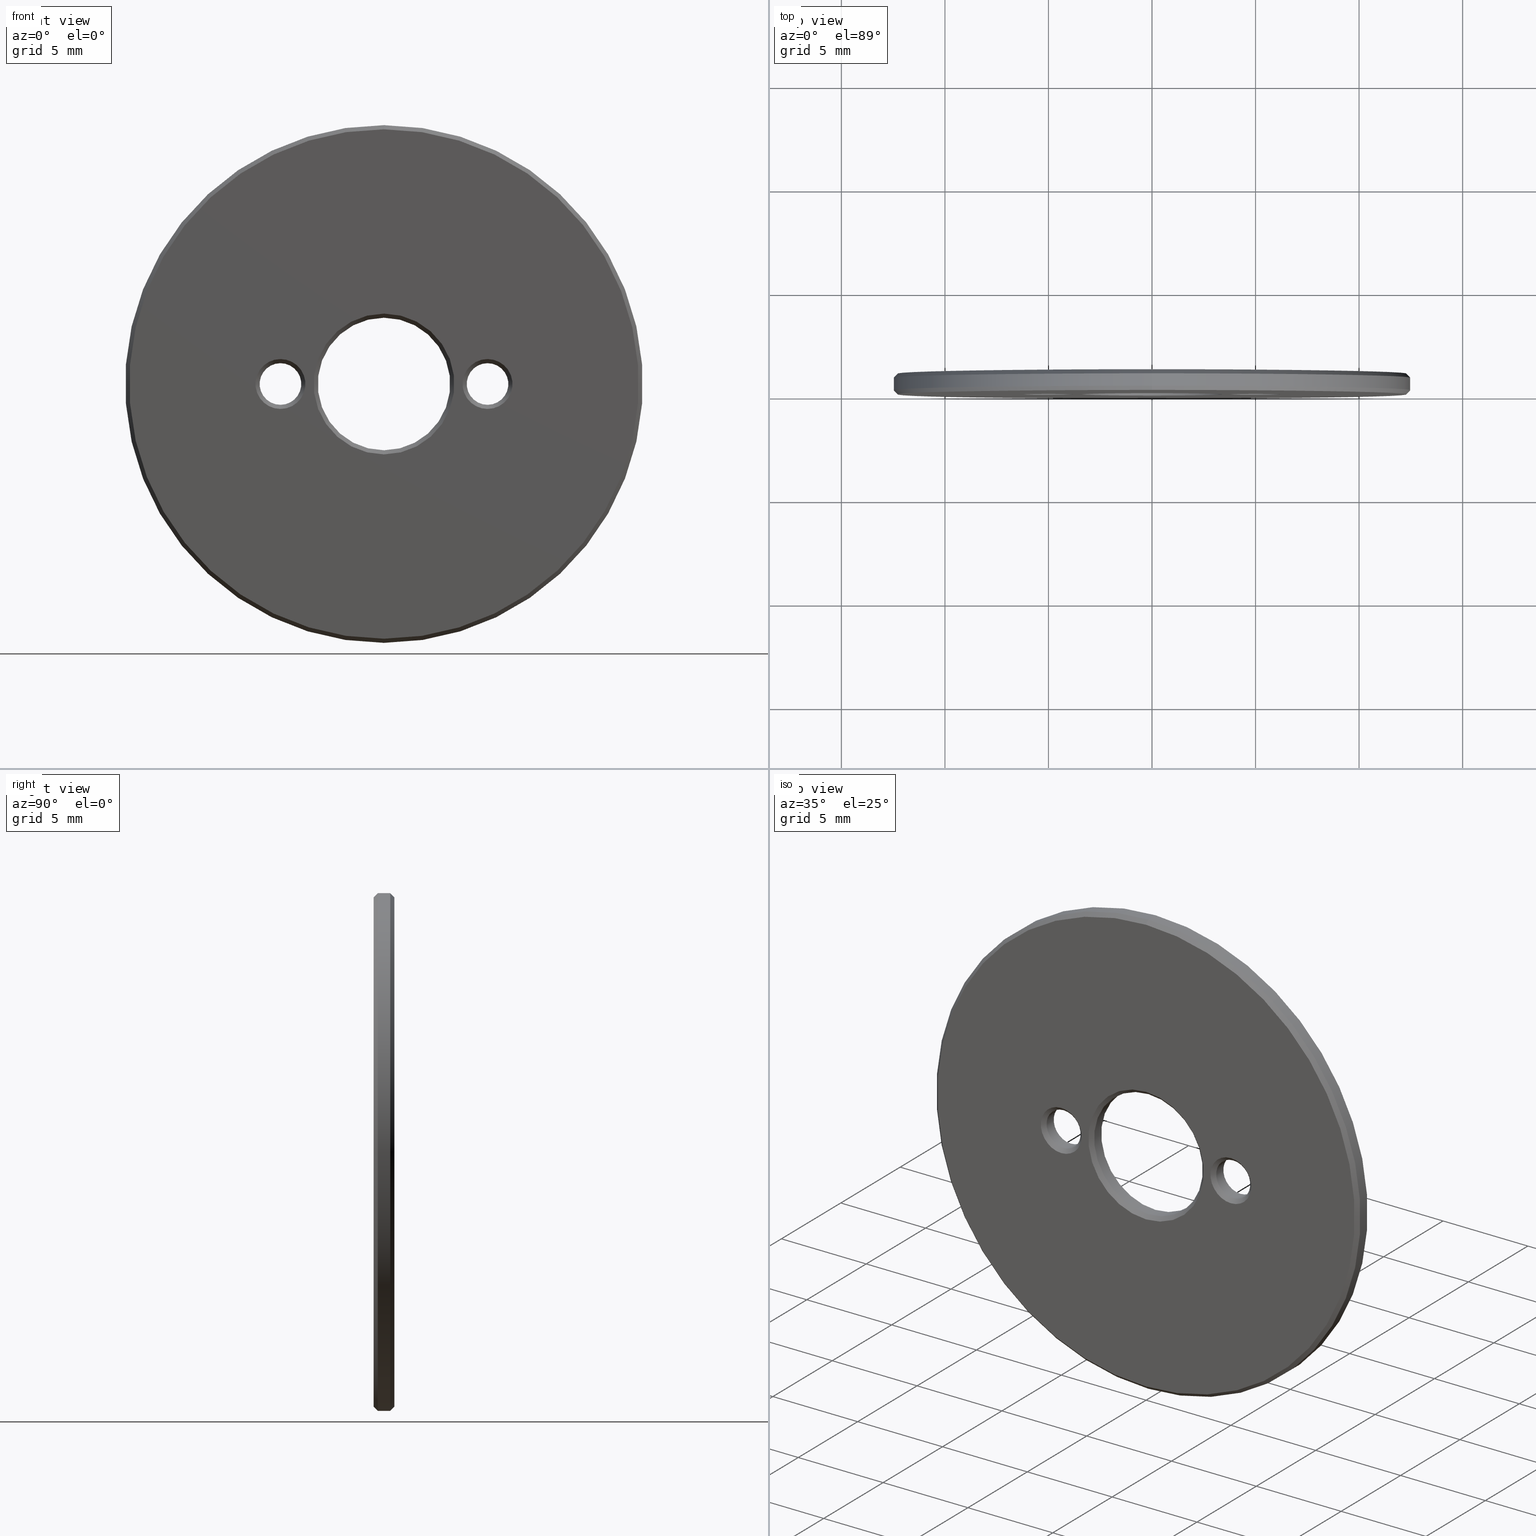
[diagram: canonical four-view strip — front | top / right | iso, engineering-drawing reading convention]
A machine part, canonical four-view strip (front | top / right | iso — engineering-drawing reading convention). The complete STEP part file that produces these views, byte-faithful:
ISO-10303-21;
HEADER;
FILE_DESCRIPTION (( 'STEP AP203' ),
    '1' );
FILE_NAME ('523800.STEP',
    '2022-12-15T01:49:51',
    ( '' ),
    ( '' ),
    'SwSTEP 2.0',
    'SolidWorks 2020',
    '' );
FILE_SCHEMA (( 'CONFIG_CONTROL_DESIGN' ));
ENDSEC;

DATA;
#1 = APPROVAL_STATUS ( 'not_yet_approved' ) ;
#2 = ADVANCED_BREP_SHAPE_REPRESENTATION ( '523800', ( #295, #219 ), #73 ) ;
#3 = EDGE_CURVE ( 'NONE', #172, #172, #47, .T. ) ;
#4 = APPROVAL_DATE_TIME ( #103, #354 ) ;
#5 = APPROVAL_PERSON_ORGANIZATION ( #196, #354, #164 ) ;
#6 = CONICAL_SURFACE ( 'NONE', #266, 3.200000000000000178, 0.7853981633974482790 ) ;
#7 = COORDINATED_UNIVERSAL_TIME_OFFSET ( 8, 0, .AHEAD. ) ;
#8 = DIRECTION ( 'NONE',  ( 0.000000000000000000, -0.000000000000000000, 1.000000000000000000 ) ) ;
#9 = APPROVAL_ROLE ( '' ) ;
#10 = DIRECTION ( 'NONE',  ( 0.000000000000000000, 0.000000000000000000, -1.000000000000000000 ) ) ;
#11 = DIRECTION ( 'NONE',  ( -0.000000000000000000, -1.000000000000000000, -0.000000000000000000 ) ) ;
#12 = APPROVAL_PERSON_ORGANIZATION ( #223, #313, #35 ) ;
#13 = CARTESIAN_POINT ( 'NONE',  ( -5.000000000000000000, 1.000000000000000000, 0.000000000000000000 ) ) ;
#14 = ADVANCED_FACE ( 'NONE', ( #297, #77 ), #250, .F. ) ;
#15 = VERTEX_POINT ( 'NONE', #382 ) ;
#16 = ORIENTED_EDGE ( 'NONE', *, *, #381, .F. ) ;
#17 = DIRECTION ( 'NONE',  ( 0.000000000000000000, 1.000000000000000000, 0.000000000000000000 ) ) ;
#18 = CC_DESIGN_APPROVAL ( #313, ( #226 ) ) ;
#19 = EDGE_LOOP ( 'NONE', ( #155 ) ) ;
#20 = DIRECTION ( 'NONE',  ( -0.000000000000000000, -1.000000000000000000, -0.000000000000000000 ) ) ;
#21 = ORIENTED_EDGE ( 'NONE', *, *, #81, .T. ) ;
#22 = CC_DESIGN_PERSON_AND_ORGANIZATION_ASSIGNMENT ( #314, #37, ( #226 ) ) ;
#23 = DIRECTION ( 'NONE',  ( -0.000000000000000000, -1.000000000000000000, -0.000000000000000000 ) ) ;
#24 = EDGE_LOOP ( 'NONE', ( #187 ) ) ;
#25 = VERTEX_POINT ( 'NONE', #118 ) ;
#26 = ORIENTED_EDGE ( 'NONE', *, *, #273, .F. ) ;
#27 = APPROVAL_PERSON_ORGANIZATION ( #133, #150, #9 ) ;
#28 = CARTESIAN_POINT ( 'NONE',  ( 0.000000000000000000, 0.8000000000000029310, 12.50000000000000000 ) ) ;
#29 = AXIS2_PLACEMENT_3D ( 'NONE', #167, #99, #285 ) ;
#30 = AXIS2_PLACEMENT_3D ( 'NONE', #261, #205, #176 ) ;
#31 = EDGE_LOOP ( 'NONE', ( #119 ) ) ;
#32 = AXIS2_PLACEMENT_3D ( 'NONE', #38, #199, #311 ) ;
#33 = VERTEX_POINT ( 'NONE', #220 ) ;
#34 = DIRECTION ( 'NONE',  ( 0.000000000000000000, 0.000000000000000000, -1.000000000000000000 ) ) ;
#35 = APPROVAL_ROLE ( '' ) ;
#36 = CYLINDRICAL_SURFACE ( 'NONE', #379, 12.50000000000000000 ) ;
#37 = PERSON_AND_ORGANIZATION_ROLE ( 'creator' ) ;
#38 = CARTESIAN_POINT ( 'NONE',  ( 0.000000000000000000, 0.1999999999999987899, 0.000000000000000000 ) ) ;
#39 = AXIS2_PLACEMENT_3D ( 'NONE', #378, #233, #238 ) ;
#40 = COORDINATED_UNIVERSAL_TIME_OFFSET ( 8, 0, .AHEAD. ) ;
#41 = ADVANCED_FACE ( 'NONE', ( #368, #321 ), #179, .F. ) ;
#42 = DESIGN_CONTEXT ( 'detailed design', #305, 'design' ) ;
#43 = SECURITY_CLASSIFICATION_LEVEL ( 'unclassified' ) ;
#44 = APPROVAL_STATUS ( 'not_yet_approved' ) ;
#45 = CC_DESIGN_APPROVAL ( #150, ( #299 ) ) ;
#46 = UNCERTAINTY_MEASURE_WITH_UNIT (LENGTH_MEASURE( 1.000000000000000082E-05 ), #367, 'distance_accuracy_value', 'NONE');
#47 = CIRCLE ( 'NONE', #171, 3.200000000000000178 ) ;
#48 = FACE_OUTER_BOUND ( 'NONE', #62, .T. ) ;
#49 = CARTESIAN_POINT ( 'NONE',  ( 0.000000000000000000, 1.000000000000000000, 0.000000000000000000 ) ) ;
#50 = DIRECTION ( 'NONE',  ( 0.000000000000000000, 0.000000000000000000, 1.000000000000000000 ) ) ;
#51 = DIRECTION ( 'NONE',  ( 0.000000000000000000, 0.000000000000000000, -1.000000000000000000 ) ) ;
#52 = CONICAL_SURFACE ( 'NONE', #190, 1.004999999999999893, 0.7853981633974488341 ) ;
#53 = DIRECTION ( 'NONE',  ( -0.000000000000000000, -1.000000000000000000, -0.000000000000000000 ) ) ;
#54 = ORIENTED_EDGE ( 'NONE', *, *, #163, .F. ) ;
#55 = FACE_BOUND ( 'NONE', #148, .T. ) ;
#56 = LOCAL_TIME ( 9, 49, 51.00000000000000000, #288 ) ;
#57 = ORIENTED_EDGE ( 'NONE', *, *, #3, .F. ) ;
#58 = ADVANCED_FACE ( 'NONE', ( #169, #256 ), #6, .F. ) ;
#59 = CARTESIAN_POINT ( 'NONE',  ( 0.000000000000000000, 0.2000000000000070333, 3.200000000000000178 ) ) ;
#60 = AXIS2_PLACEMENT_3D ( 'NONE', #139, #296, #356 ) ;
#61 = ORIENTED_EDGE ( 'NONE', *, *, #201, .F. ) ;
#62 = EDGE_LOOP ( 'NONE', ( #92 ) ) ;
#63 = PERSON_AND_ORGANIZATION_ROLE ( 'design_owner' ) ;
#64 = ADVANCED_FACE ( 'NONE', ( #397, #202 ), #369, .T. ) ;
#65 = ORIENTED_EDGE ( 'NONE', *, *, #255, .F. ) ;
#66 = AXIS2_PLACEMENT_3D ( 'NONE', #170, #211, #260 ) ;
#67 = DIRECTION ( 'NONE',  ( -0.000000000000000000, -1.000000000000000000, -0.000000000000000000 ) ) ;
#68 = CONICAL_SURFACE ( 'NONE', #32, 12.50000000000000000, 0.7853981633974482790 ) ;
#69 = CARTESIAN_POINT ( 'NONE',  ( -5.000000000000000000, 1.000000000000000000, 1.205000000000004734 ) ) ;
#70 = DIRECTION ( 'NONE',  ( 0.000000000000000000, 1.000000000000000000, 0.000000000000000000 ) ) ;
#71 = VERTEX_POINT ( 'NONE', #389 ) ;
#72 = DIRECTION ( 'NONE',  ( 0.000000000000000000, 0.000000000000000000, -1.000000000000000000 ) ) ;
#73 =( GEOMETRIC_REPRESENTATION_CONTEXT ( 3 ) GLOBAL_UNCERTAINTY_ASSIGNED_CONTEXT ( ( #46 ) ) GLOBAL_UNIT_ASSIGNED_CONTEXT ( ( #367, #249, #192 ) ) REPRESENTATION_CONTEXT ( 'NONE', 'WORKASPACE' ) );
#74 = AXIS2_PLACEMENT_3D ( 'NONE', #330, #20, #114 ) ;
#75 = CALENDAR_DATE ( 2022, 15, 12 ) ;
#76 = ADVANCED_FACE ( 'NONE', ( #290, #135 ), #129, .F. ) ;
#77 = FACE_OUTER_BOUND ( 'NONE', #214, .T. ) ;
#78 = AXIS2_PLACEMENT_3D ( 'NONE', #49, #222, #258 ) ;
#79 = FACE_BOUND ( 'NONE', #362, .T. ) ;
#80 = CYLINDRICAL_SURFACE ( 'NONE', #309, 3.200000000000000178 ) ;
#81 = EDGE_CURVE ( 'NONE', #15, #15, #302, .T. ) ;
#82 = DIRECTION ( 'NONE',  ( 0.000000000000000000, 0.000000000000000000, 1.000000000000000000 ) ) ;
#83 = AXIS2_PLACEMENT_3D ( 'NONE', #88, #17, #209 ) ;
#84 = DIRECTION ( 'NONE',  ( 0.000000000000000000, 1.000000000000000000, 0.000000000000000000 ) ) ;
#85 = CARTESIAN_POINT ( 'NONE',  ( 0.000000000000000000, 1.000000000000000000, 0.000000000000000000 ) ) ;
#86 = ADVANCED_FACE ( 'NONE', ( #279, #224 ), #36, .T. ) ;
#87 = EDGE_LOOP ( 'NONE', ( #306 ) ) ;
#88 = CARTESIAN_POINT ( 'NONE',  ( 5.000000000000000000, 0.8000000000000058176, -1.836970198721029194E-15 ) ) ;
#89 = ORIENTED_EDGE ( 'NONE', *, *, #328, .T. ) ;
#90 = PRODUCT_DEFINITION_SHAPE ( 'NONE', 'NONE',  #226 ) ;
#91 = MECHANICAL_CONTEXT ( 'NONE', #259, 'mechanical' ) ;
#92 = ORIENTED_EDGE ( 'NONE', *, *, #204, .T. ) ;
#93 = ADVANCED_FACE ( 'NONE', ( #79, #345, #48, #102 ), #229, .T. ) ;
#94 = EDGE_LOOP ( 'NONE', ( #329 ) ) ;
#95 = APPLICATION_PROTOCOL_DEFINITION ( 'international standard', 'config_control_design', 1994, #305 ) ;
#96 = CARTESIAN_POINT ( 'NONE',  ( 5.000000000000000000, 0.8000000000000058176, -1.836970198721029194E-15 ) ) ;
#97 = VERTEX_POINT ( 'NONE', #307 ) ;
#98 = CIRCLE ( 'NONE', #227, 12.29999999999999893 ) ;
#99 = DIRECTION ( 'NONE',  ( -0.000000000000000000, -1.000000000000000000, -0.000000000000000000 ) ) ;
#100 = VERTEX_POINT ( 'NONE', #241 ) ;
#101 = ADVANCED_FACE ( 'NONE', ( #291, #193 ), #52, .F. ) ;
#102 = FACE_BOUND ( 'NONE', #181, .T. ) ;
#103 = DATE_AND_TIME ( #316, #377 ) ;
#104 = CC_DESIGN_APPROVAL ( #354, ( #281 ) ) ;
#105 = CIRCLE ( 'NONE', #74, 1.004999999999999893 ) ;
#106 = CARTESIAN_POINT ( 'NONE',  ( -5.000000000000000000, 0.000000000000000000, 0.000000000000000000 ) ) ;
#107 = CARTESIAN_POINT ( 'NONE',  ( 0.000000000000000000, 1.000000000000000000, 0.000000000000000000 ) ) ;
#108 = CIRCLE ( 'NONE', #341, 12.30000000000000249 ) ;
#109 = PLANE ( 'NONE',  #66 ) ;
#110 = FACE_OUTER_BOUND ( 'NONE', #87, .T. ) ;
#111 = CARTESIAN_POINT ( 'NONE',  ( 5.000000000000000000, 0.2000000000000016209, -1.836970198721029194E-15 ) ) ;
#112 = ORIENTED_EDGE ( 'NONE', *, *, #182, .T. ) ;
#113 = CONICAL_SURFACE ( 'NONE', #60, 1.004999999999999893, 0.7853981633974488341 ) ;
#114 = DIRECTION ( 'NONE',  ( 0.000000000000000000, 0.000000000000000000, 1.000000000000000000 ) ) ;
#115 = ORIENTED_EDGE ( 'NONE', *, *, #381, .T. ) ;
#116 = FACE_OUTER_BOUND ( 'NONE', #122, .T. ) ;
#117 = EDGE_LOOP ( 'NONE', ( #112 ) ) ;
#118 = CARTESIAN_POINT ( 'NONE',  ( 0.000000000000000000, 0.000000000000000000, 12.30000000000000249 ) ) ;
#119 = ORIENTED_EDGE ( 'NONE', *, *, #255, .T. ) ;
#120 = APPLICATION_PROTOCOL_DEFINITION ( 'international standard', 'config_control_design', 1994, #259 ) ;
#121 = CLOSED_SHELL ( 'NONE', ( #93, #252, #86, #318, #128, #298, #41, #76, #14, #142, #344, #58, #64, #101 ) ) ;
#122 = EDGE_LOOP ( 'NONE', ( #392 ) ) ;
#123 = VERTEX_POINT ( 'NONE', #28 ) ;
#124 = VERTEX_POINT ( 'NONE', #185 ) ;
#125 = DIRECTION ( 'NONE',  ( 0.000000000000000000, 0.000000000000000000, 1.000000000000000000 ) ) ;
#126 = LOCAL_TIME ( 9, 49, 51.00000000000000000, #7 ) ;
#127 = VERTEX_POINT ( 'NONE', #337 ) ;
#128 = ADVANCED_FACE ( 'NONE', ( #312, #159 ), #340, .F. ) ;
#129 = CONICAL_SURFACE ( 'NONE', #353, 1.205000000000001181, 0.7853981633974477239 ) ;
#130 = FACE_OUTER_BOUND ( 'NONE', #331, .T. ) ;
#131 = PERSON_AND_ORGANIZATION_ROLE ( 'classification_officer' ) ;
#132 = EDGE_CURVE ( 'NONE', #183, #183, #276, .T. ) ;
#133 = PERSON_AND_ORGANIZATION ( #243, #264 ) ;
#134 = AXIS2_PLACEMENT_3D ( 'NONE', #111, #53, #303 ) ;
#135 = FACE_OUTER_BOUND ( 'NONE', #270, .T. ) ;
#136 = PERSON_AND_ORGANIZATION_ROLE ( 'creator' ) ;
#137 = CARTESIAN_POINT ( 'NONE',  ( 0.000000000000000000, 1.000000000000000000, 0.000000000000000000 ) ) ;
#138 = CARTESIAN_POINT ( 'NONE',  ( 5.000000000000000000, 1.000000000000000000, -1.836970198721029194E-15 ) ) ;
#139 = CARTESIAN_POINT ( 'NONE',  ( -5.000000000000000000, 0.7999999999999953815, 0.000000000000000000 ) ) ;
#140 = FACE_OUTER_BOUND ( 'NONE', #24, .T. ) ;
#141 = EDGE_LOOP ( 'NONE', ( #65 ) ) ;
#142 = ADVANCED_FACE ( 'NONE', ( #282, #130 ), #68, .T. ) ;
#143 = CARTESIAN_POINT ( 'NONE',  ( 0.000000000000000000, 0.8000000000000029310, 0.000000000000000000 ) ) ;
#144 = EDGE_LOOP ( 'NONE', ( #363 ) ) ;
#145 = DIRECTION ( 'NONE',  ( -0.000000000000000000, -1.000000000000000000, -0.000000000000000000 ) ) ;
#146 = EDGE_LOOP ( 'NONE', ( #244 ) ) ;
#147 = DIRECTION ( 'NONE',  ( -0.000000000000000000, -1.000000000000000000, -0.000000000000000000 ) ) ;
#148 = EDGE_LOOP ( 'NONE', ( #178 ) ) ;
#149 = PERSON_AND_ORGANIZATION ( #243, #264 ) ;
#150 = APPROVAL ( #1, 'δָ��' ) ;
#151 = EDGE_LOOP ( 'NONE', ( #320 ) ) ;
#152 = CARTESIAN_POINT ( 'NONE',  ( 5.000000000000000000, 0.8000000000000058176, 1.004999999999998117 ) ) ;
#153 = CIRCLE ( 'NONE', #134, 1.004999999999999893 ) ;
#154 = CIRCLE ( 'NONE', #235, 1.205000000000001181 ) ;
#155 = ORIENTED_EDGE ( 'NONE', *, *, #348, .F. ) ;
#156 = VERTEX_POINT ( 'NONE', #310 ) ;
#157 = CARTESIAN_POINT ( 'NONE',  ( 5.000000000000000000, 0.000000000000000000, -1.836970198721029194E-15 ) ) ;
#158 = DATE_AND_TIME ( #247, #186 ) ;
#159 = FACE_OUTER_BOUND ( 'NONE', #117, .T. ) ;
#160 = AXIS2_PLACEMENT_3D ( 'NONE', #294, #145, #263 ) ;
#161 = DIRECTION ( 'NONE',  ( 0.000000000000000000, 1.000000000000000000, 0.000000000000000000 ) ) ;
#162 = PERSON_AND_ORGANIZATION_ROLE ( 'design_supplier' ) ;
#163 = EDGE_CURVE ( 'NONE', #33, #33, #154, .T. ) ;
#164 = APPROVAL_ROLE ( '' ) ;
#165 = CIRCLE ( 'NONE', #83, 1.004999999999999893 ) ;
#166 = CALENDAR_DATE ( 2022, 15, 12 ) ;
#167 = CARTESIAN_POINT ( 'NONE',  ( -5.000000000000000000, 0.000000000000000000, 0.000000000000000000 ) ) ;
#168 = EDGE_CURVE ( 'NONE', #127, #127, #289, .T. ) ;
#169 = FACE_OUTER_BOUND ( 'NONE', #141, .T. ) ;
#170 = CARTESIAN_POINT ( 'NONE',  ( 0.000000000000000000, 0.000000000000000000, 0.000000000000000000 ) ) ;
#171 = AXIS2_PLACEMENT_3D ( 'NONE', #184, #246, #366 ) ;
#172 = VERTEX_POINT ( 'NONE', #59 ) ;
#173 = PRODUCT_RELATED_PRODUCT_CATEGORY ( 'detail', '', ( #272 ) ) ;
#174 = CARTESIAN_POINT ( 'NONE',  ( 0.000000000000000000, 1.000000000000000000, 0.000000000000000000 ) ) ;
#175 = EDGE_LOOP ( 'NONE', ( #26 ) ) ;
#176 = DIRECTION ( 'NONE',  ( 0.000000000000000000, 0.000000000000000000, 1.000000000000000000 ) ) ;
#177 = LOCAL_TIME ( 9, 49, 51.00000000000000000, #319 ) ;
#178 = ORIENTED_EDGE ( 'NONE', *, *, #168, .T. ) ;
#179 = CONICAL_SURFACE ( 'NONE', #29, 1.205000000000001181, 0.7853981633974477239 ) ;
#180 = CYLINDRICAL_SURFACE ( 'NONE', #326, 1.004999999999999893 ) ;
#181 = EDGE_LOOP ( 'NONE', ( #21 ) ) ;
#182 = EDGE_CURVE ( 'NONE', #346, #346, #165, .T. ) ;
#183 = VERTEX_POINT ( 'NONE', #343 ) ;
#184 = CARTESIAN_POINT ( 'NONE',  ( 0.000000000000000000, 0.2000000000000070333, 0.000000000000000000 ) ) ;
#185 = CARTESIAN_POINT ( 'NONE',  ( -5.000000000000000000, 0.2000000000000016209, 1.004999999999999893 ) ) ;
#186 = LOCAL_TIME ( 9, 49, 51.00000000000000000, #339 ) ;
#187 = ORIENTED_EDGE ( 'NONE', *, *, #273, .T. ) ;
#188 = CIRCLE ( 'NONE', #200, 3.200000000000000178 ) ;
#189 = VERTEX_POINT ( 'NONE', #269 ) ;
#190 = AXIS2_PLACEMENT_3D ( 'NONE', #96, #218, #195 ) ;
#191 = DIRECTION ( 'NONE',  ( 0.000000000000000000, 1.000000000000000000, 0.000000000000000000 ) ) ;
#192 =( NAMED_UNIT ( * ) SI_UNIT ( $, .STERADIAN. ) SOLID_ANGLE_UNIT ( ) );
#193 = FACE_BOUND ( 'NONE', #210, .T. ) ;
#194 = APPROVAL_DATE_TIME ( #158, #313 ) ;
#195 = DIRECTION ( 'NONE',  ( 0.000000000000000000, 0.000000000000000000, 1.000000000000000000 ) ) ;
#196 = PERSON_AND_ORGANIZATION ( #243, #264 ) ;
#197 = CIRCLE ( 'NONE', #350, 12.50000000000000000 ) ;
#198 = APPROVAL_DATE_TIME ( #287, #150 ) ;
#199 = DIRECTION ( 'NONE',  ( -0.000000000000000000, 1.000000000000000000, -0.000000000000000000 ) ) ;
#200 = AXIS2_PLACEMENT_3D ( 'NONE', #325, #380, #207 ) ;
#201 = EDGE_CURVE ( 'NONE', #124, #124, #105, .T. ) ;
#202 = FACE_BOUND ( 'NONE', #151, .T. ) ;
#203 = CARTESIAN_POINT ( 'NONE',  ( 0.000000000000000000, 0.000000000000000000, 0.000000000000000000 ) ) ;
#204 = EDGE_CURVE ( 'NONE', #97, #97, #98, .T. ) ;
#205 = DIRECTION ( 'NONE',  ( -0.000000000000000000, 1.000000000000000000, -0.000000000000000000 ) ) ;
#206 = AXIS2_PLACEMENT_3D ( 'NONE', #106, #396, #315 ) ;
#207 = DIRECTION ( 'NONE',  ( 0.000000000000000000, 0.000000000000000000, 1.000000000000000000 ) ) ;
#208 = EDGE_LOOP ( 'NONE', ( #61 ) ) ;
#209 = DIRECTION ( 'NONE',  ( 0.000000000000000000, 0.000000000000000000, 1.000000000000000000 ) ) ;
#210 = EDGE_LOOP ( 'NONE', ( #240 ) ) ;
#211 = DIRECTION ( 'NONE',  ( 0.000000000000000000, 1.000000000000000000, 0.000000000000000000 ) ) ;
#212 = EDGE_LOOP ( 'NONE', ( #57 ) ) ;
#213 = CIRCLE ( 'NONE', #39, 1.004999999999999893 ) ;
#214 = EDGE_LOOP ( 'NONE', ( #265 ) ) ;
#215 = EDGE_LOOP ( 'NONE', ( #308 ) ) ;
#216 = APPROVAL_STATUS ( 'not_yet_approved' ) ;
#217 = CC_DESIGN_PERSON_AND_ORGANIZATION_ASSIGNMENT ( #254, #136, ( #299 ) ) ;
#218 = DIRECTION ( 'NONE',  ( 0.000000000000000000, 1.000000000000000000, 0.000000000000000000 ) ) ;
#219 = AXIS2_PLACEMENT_3D ( 'NONE', #395, #280, #271 ) ;
#220 = CARTESIAN_POINT ( 'NONE',  ( 5.000000000000000000, 0.000000000000000000, 1.204999999999999405 ) ) ;
#221 = AXIS2_PLACEMENT_3D ( 'NONE', #13, #147, #232 ) ;
#222 = DIRECTION ( 'NONE',  ( 0.000000000000000000, -1.000000000000000000, 0.000000000000000000 ) ) ;
#223 = PERSON_AND_ORGANIZATION ( #243, #264 ) ;
#224 = FACE_OUTER_BOUND ( 'NONE', #304, .T. ) ;
#225 = DATE_AND_TIME ( #166, #56 ) ;
#226 = PRODUCT_DEFINITION ( 'δ֪', '', #299, #42 ) ;
#227 = AXIS2_PLACEMENT_3D ( 'NONE', #174, #300, #50 ) ;
#228 = DATE_AND_TIME ( #75, #126 ) ;
#229 = PLANE ( 'NONE',  #284 ) ;
#230 = DIRECTION ( 'NONE',  ( 0.000000000000000000, 0.000000000000000000, 1.000000000000000000 ) ) ;
#231 = AXIS2_PLACEMENT_3D ( 'NONE', #138, #257, #230 ) ;
#232 = DIRECTION ( 'NONE',  ( 0.000000000000000000, 0.000000000000000000, 1.000000000000000000 ) ) ;
#233 = DIRECTION ( 'NONE',  ( 0.000000000000000000, 1.000000000000000000, 0.000000000000000000 ) ) ;
#234 = FACE_BOUND ( 'NONE', #144, .T. ) ;
#235 = AXIS2_PLACEMENT_3D ( 'NONE', #157, #161, #125 ) ;
#236 = FACE_BOUND ( 'NONE', #215, .T. ) ;
#237 = ORIENTED_EDGE ( 'NONE', *, *, #328, .F. ) ;
#238 = DIRECTION ( 'NONE',  ( 0.000000000000000000, 0.000000000000000000, 1.000000000000000000 ) ) ;
#239 = CC_DESIGN_PERSON_AND_ORGANIZATION_ASSIGNMENT ( #317, #162, ( #299 ) ) ;
#240 = ORIENTED_EDGE ( 'NONE', *, *, #182, .F. ) ;
#241 = CARTESIAN_POINT ( 'NONE',  ( 0.000000000000000000, 1.000000000000000000, 3.399999999999999911 ) ) ;
#242 = EDGE_LOOP ( 'NONE', ( #16 ) ) ;
#243 = PERSON ( 'δָ��', 'δָ��', 'δָ��', ('δָ��'), ('δָ��'), ('δָ��') ) ;
#244 = ORIENTED_EDGE ( 'NONE', *, *, #81, .F. ) ;
#245 = EDGE_CURVE ( 'NONE', #189, #189, #188, .T. ) ;
#246 = DIRECTION ( 'NONE',  ( -0.000000000000000000, -1.000000000000000000, -0.000000000000000000 ) ) ;
#247 = CALENDAR_DATE ( 2022, 15, 12 ) ;
#248 = CARTESIAN_POINT ( 'NONE',  ( 0.000000000000000000, 0.000000000000000000, 0.000000000000000000 ) ) ;
#249 =( NAMED_UNIT ( * ) PLANE_ANGLE_UNIT ( ) SI_UNIT ( $, .RADIAN. ) );
#250 = CONICAL_SURFACE ( 'NONE', #349, 3.400000000000007017, 0.7853981633974482790 ) ;
#251 = CARTESIAN_POINT ( 'NONE',  ( 5.000000000000000000, 1.000000000000000000, -1.836970198721029194E-15 ) ) ;
#252 = ADVANCED_FACE ( 'NONE', ( #234, #236, #55, #110 ), #109, .F. ) ;
#253 = DATE_TIME_ROLE ( 'classification_date' ) ;
#254 = PERSON_AND_ORGANIZATION ( #243, #264 ) ;
#255 = EDGE_CURVE ( 'NONE', #100, #100, #384, .T. ) ;
#256 = FACE_BOUND ( 'NONE', #262, .T. ) ;
#257 = DIRECTION ( 'NONE',  ( -0.000000000000000000, -1.000000000000000000, -0.000000000000000000 ) ) ;
#258 = DIRECTION ( 'NONE',  ( 0.000000000000000000, 0.000000000000000000, -1.000000000000000000 ) ) ;
#259 = APPLICATION_CONTEXT ( 'configuration controlled 3d designs of mechanical parts and assemblies' ) ;
#260 = DIRECTION ( 'NONE',  ( 0.000000000000000000, -0.000000000000000000, 1.000000000000000000 ) ) ;
#261 = CARTESIAN_POINT ( 'NONE',  ( 0.000000000000000000, 0.1999999999999987899, 0.000000000000000000 ) ) ;
#262 = EDGE_LOOP ( 'NONE', ( #274 ) ) ;
#263 = DIRECTION ( 'NONE',  ( 0.000000000000000000, 0.000000000000000000, 1.000000000000000000 ) ) ;
#264 = ORGANIZATION ( 'δָ��', 'δָ��', '' ) ;
#265 = ORIENTED_EDGE ( 'NONE', *, *, #168, .F. ) ;
#266 = AXIS2_PLACEMENT_3D ( 'NONE', #347, #191, #351 ) ;
#267 = FACE_BOUND ( 'NONE', #175, .T. ) ;
#268 = EDGE_LOOP ( 'NONE', ( #301 ) ) ;
#269 = CARTESIAN_POINT ( 'NONE',  ( 0.000000000000000000, 0.8000000000000003775, 3.200000000000000178 ) ) ;
#270 = EDGE_LOOP ( 'NONE', ( #54 ) ) ;
#271 = DIRECTION ( 'NONE',  ( 1.000000000000000000, 0.000000000000000000, 0.000000000000000000 ) ) ;
#272 = PRODUCT ( '523800', '523800', '', ( #91 ) ) ;
#273 = EDGE_CURVE ( 'NONE', #71, #71, #213, .T. ) ;
#274 = ORIENTED_EDGE ( 'NONE', *, *, #245, .F. ) ;
#275 = CIRCLE ( 'NONE', #30, 12.50000000000000000 ) ;
#276 = CIRCLE ( 'NONE', #206, 1.205000000000001181 ) ;
#277 = EDGE_LOOP ( 'NONE', ( #237 ) ) ;
#278 = VERTEX_POINT ( 'NONE', #69 ) ;
#279 = FACE_OUTER_BOUND ( 'NONE', #388, .T. ) ;
#280 = DIRECTION ( 'NONE',  ( 0.000000000000000000, 0.000000000000000000, 1.000000000000000000 ) ) ;
#281 = SECURITY_CLASSIFICATION ( '', '', #43 ) ;
#282 = FACE_BOUND ( 'NONE', #338, .T. ) ;
#283 = CALENDAR_DATE ( 2022, 15, 12 ) ;
#284 = AXIS2_PLACEMENT_3D ( 'NONE', #107, #70, #8 ) ;
#285 = DIRECTION ( 'NONE',  ( 0.000000000000000000, 0.000000000000000000, -1.000000000000000000 ) ) ;
#286 = PERSON_AND_ORGANIZATION ( #243, #264 ) ;
#287 = DATE_AND_TIME ( #283, #177 ) ;
#288 = COORDINATED_UNIVERSAL_TIME_OFFSET ( 8, 0, .AHEAD. ) ;
#289 = CIRCLE ( 'NONE', #342, 3.400000000000007017 ) ;
#290 = FACE_BOUND ( 'NONE', #277, .T. ) ;
#291 = FACE_OUTER_BOUND ( 'NONE', #146, .T. ) ;
#292 = DIRECTION ( 'NONE',  ( -0.000000000000000000, -1.000000000000000000, -0.000000000000000000 ) ) ;
#293 = CC_DESIGN_PERSON_AND_ORGANIZATION_ASSIGNMENT ( #286, #131, ( #281 ) ) ;
#294 = CARTESIAN_POINT ( 'NONE',  ( 0.000000000000000000, 1.000000000000000000, 0.000000000000000000 ) ) ;
#295 = MANIFOLD_SOLID_BREP ( '����1', #121 ) ;
#296 = DIRECTION ( 'NONE',  ( 0.000000000000000000, 1.000000000000000000, 0.000000000000000000 ) ) ;
#297 = FACE_BOUND ( 'NONE', #212, .T. ) ;
#298 = ADVANCED_FACE ( 'NONE', ( #116, #140 ), #180, .F. ) ;
#299 = PRODUCT_DEFINITION_FORMATION_WITH_SPECIFIED_SOURCE ( '�κ�', '', #272, .NOT_KNOWN. ) ;
#300 = DIRECTION ( 'NONE',  ( 0.000000000000000000, 1.000000000000000000, 0.000000000000000000 ) ) ;
#301 = ORIENTED_EDGE ( 'NONE', *, *, #132, .F. ) ;
#302 = CIRCLE ( 'NONE', #231, 1.204999999999994298 ) ;
#303 = DIRECTION ( 'NONE',  ( 0.000000000000000000, 0.000000000000000000, 1.000000000000000000 ) ) ;
#304 = EDGE_LOOP ( 'NONE', ( #390 ) ) ;
#305 = APPLICATION_CONTEXT ( 'configuration controlled 3d designs of mechanical parts and assemblies' ) ;
#306 = ORIENTED_EDGE ( 'NONE', *, *, #394, .T. ) ;
#307 = CARTESIAN_POINT ( 'NONE',  ( 0.000000000000000000, 1.000000000000000000, 12.29999999999999893 ) ) ;
#308 = ORIENTED_EDGE ( 'NONE', *, *, #163, .T. ) ;
#309 = AXIS2_PLACEMENT_3D ( 'NONE', #85, #23, #332 ) ;
#310 = CARTESIAN_POINT ( 'NONE',  ( 5.000000000000000000, 0.2000000000000016209, 1.004999999999998117 ) ) ;
#311 = DIRECTION ( 'NONE',  ( 0.000000000000000000, 0.000000000000000000, 1.000000000000000000 ) ) ;
#312 = FACE_OUTER_BOUND ( 'NONE', #386, .T. ) ;
#313 = APPROVAL ( #216, 'δָ��' ) ;
#314 = PERSON_AND_ORGANIZATION ( #243, #264 ) ;
#315 = DIRECTION ( 'NONE',  ( 0.000000000000000000, 0.000000000000000000, 1.000000000000000000 ) ) ;
#316 = CALENDAR_DATE ( 2022, 15, 12 ) ;
#317 = PERSON_AND_ORGANIZATION ( #243, #264 ) ;
#318 = ADVANCED_FACE ( 'NONE', ( #361, #327 ), #80, .F. ) ;
#319 = COORDINATED_UNIVERSAL_TIME_OFFSET ( 8, 0, .AHEAD. ) ;
#320 = ORIENTED_EDGE ( 'NONE', *, *, #204, .F. ) ;
#321 = FACE_OUTER_BOUND ( 'NONE', #268, .T. ) ;
#322 = DIRECTION ( 'NONE',  ( -0.000000000000000000, -1.000000000000000000, -0.000000000000000000 ) ) ;
#323 = CARTESIAN_POINT ( 'NONE',  ( -5.000000000000000000, 1.000000000000000000, 0.000000000000000000 ) ) ;
#324 = CC_DESIGN_SECURITY_CLASSIFICATION ( #281, ( #299 ) ) ;
#325 = CARTESIAN_POINT ( 'NONE',  ( 0.000000000000000000, 0.8000000000000003775, 0.000000000000000000 ) ) ;
#326 = AXIS2_PLACEMENT_3D ( 'NONE', #323, #292, #51 ) ;
#327 = FACE_OUTER_BOUND ( 'NONE', #335, .T. ) ;
#328 = EDGE_CURVE ( 'NONE', #156, #156, #153, .T. ) ;
#329 = ORIENTED_EDGE ( 'NONE', *, *, #3, .T. ) ;
#330 = CARTESIAN_POINT ( 'NONE',  ( -5.000000000000000000, 0.2000000000000016209, 0.000000000000000000 ) ) ;
#331 = EDGE_LOOP ( 'NONE', ( #365 ) ) ;
#332 = DIRECTION ( 'NONE',  ( 0.000000000000000000, 0.000000000000000000, -1.000000000000000000 ) ) ;
#333 = ORIENTED_EDGE ( 'NONE', *, *, #364, .T. ) ;
#334 = VERTEX_POINT ( 'NONE', #391 ) ;
#335 = EDGE_LOOP ( 'NONE', ( #393 ) ) ;
#336 = CC_DESIGN_DATE_AND_TIME_ASSIGNMENT ( #228, #253, ( #281 ) ) ;
#337 = CARTESIAN_POINT ( 'NONE',  ( 0.000000000000000000, 0.000000000000000000, 3.400000000000007017 ) ) ;
#338 = EDGE_LOOP ( 'NONE', ( #360 ) ) ;
#339 = COORDINATED_UNIVERSAL_TIME_OFFSET ( 8, 0, .AHEAD. ) ;
#340 = CYLINDRICAL_SURFACE ( 'NONE', #358, 1.004999999999999893 ) ;
#341 = AXIS2_PLACEMENT_3D ( 'NONE', #203, #383, #359 ) ;
#342 = AXIS2_PLACEMENT_3D ( 'NONE', #248, #84, #355 ) ;
#343 = CARTESIAN_POINT ( 'NONE',  ( -5.000000000000000000, 0.000000000000000000, 1.205000000000001181 ) ) ;
#344 = ADVANCED_FACE ( 'NONE', ( #357, #267 ), #113, .F. ) ;
#345 = FACE_BOUND ( 'NONE', #31, .T. ) ;
#346 = VERTEX_POINT ( 'NONE', #152 ) ;
#347 = CARTESIAN_POINT ( 'NONE',  ( 0.000000000000000000, 0.8000000000000003775, 0.000000000000000000 ) ) ;
#348 = EDGE_CURVE ( 'NONE', #123, #123, #197, .T. ) ;
#349 = AXIS2_PLACEMENT_3D ( 'NONE', #374, #322, #370 ) ;
#350 = AXIS2_PLACEMENT_3D ( 'NONE', #143, #387, #82 ) ;
#351 = DIRECTION ( 'NONE',  ( 0.000000000000000000, 0.000000000000000000, 1.000000000000000000 ) ) ;
#352 = DIRECTION ( 'NONE',  ( -0.000000000000000000, -1.000000000000000000, -0.000000000000000000 ) ) ;
#353 = AXIS2_PLACEMENT_3D ( 'NONE', #375, #11, #10 ) ;
#354 = APPROVAL ( #44, 'δָ��' ) ;
#355 = DIRECTION ( 'NONE',  ( 0.000000000000000000, 0.000000000000000000, 1.000000000000000000 ) ) ;
#356 = DIRECTION ( 'NONE',  ( 0.000000000000000000, 0.000000000000000000, 1.000000000000000000 ) ) ;
#357 = FACE_OUTER_BOUND ( 'NONE', #242, .T. ) ;
#358 = AXIS2_PLACEMENT_3D ( 'NONE', #251, #67, #34 ) ;
#359 = DIRECTION ( 'NONE',  ( 0.000000000000000000, 0.000000000000000000, 1.000000000000000000 ) ) ;
#360 = ORIENTED_EDGE ( 'NONE', *, *, #394, .F. ) ;
#361 = FACE_OUTER_BOUND ( 'NONE', #94, .T. ) ;
#362 = EDGE_LOOP ( 'NONE', ( #115 ) ) ;
#363 = ORIENTED_EDGE ( 'NONE', *, *, #132, .T. ) ;
#364 = EDGE_CURVE ( 'NONE', #334, #334, #275, .T. ) ;
#365 = ORIENTED_EDGE ( 'NONE', *, *, #364, .F. ) ;
#366 = DIRECTION ( 'NONE',  ( 0.000000000000000000, 0.000000000000000000, 1.000000000000000000 ) ) ;
#367 =( LENGTH_UNIT ( ) NAMED_UNIT ( * ) SI_UNIT ( .MILLI., .METRE. ) );
#368 = FACE_BOUND ( 'NONE', #208, .T. ) ;
#369 = CONICAL_SURFACE ( 'NONE', #78, 12.29999999999999893, 0.7853981633974612686 ) ;
#370 = DIRECTION ( 'NONE',  ( 0.000000000000000000, 0.000000000000000000, -1.000000000000000000 ) ) ;
#371 = DATE_TIME_ROLE ( 'creation_date' ) ;
#372 = CC_DESIGN_DATE_AND_TIME_ASSIGNMENT ( #225, #371, ( #226 ) ) ;
#373 = SHAPE_DEFINITION_REPRESENTATION ( #90, #2 ) ;
#374 = CARTESIAN_POINT ( 'NONE',  ( 0.000000000000000000, 0.000000000000000000, 0.000000000000000000 ) ) ;
#375 = CARTESIAN_POINT ( 'NONE',  ( 5.000000000000000000, 0.000000000000000000, -1.836970198721029194E-15 ) ) ;
#376 = CC_DESIGN_PERSON_AND_ORGANIZATION_ASSIGNMENT ( #149, #63, ( #272 ) ) ;
#377 = LOCAL_TIME ( 9, 49, 51.00000000000000000, #40 ) ;
#378 = CARTESIAN_POINT ( 'NONE',  ( -5.000000000000000000, 0.7999999999999953815, 0.000000000000000000 ) ) ;
#379 = AXIS2_PLACEMENT_3D ( 'NONE', #137, #352, #72 ) ;
#380 = DIRECTION ( 'NONE',  ( 0.000000000000000000, 1.000000000000000000, 0.000000000000000000 ) ) ;
#381 = EDGE_CURVE ( 'NONE', #278, #278, #385, .T. ) ;
#382 = CARTESIAN_POINT ( 'NONE',  ( 5.000000000000000000, 1.000000000000000000, 1.204999999999992522 ) ) ;
#383 = DIRECTION ( 'NONE',  ( -0.000000000000000000, -1.000000000000000000, -0.000000000000000000 ) ) ;
#384 = CIRCLE ( 'NONE', #160, 3.399999999999999911 ) ;
#385 = CIRCLE ( 'NONE', #221, 1.205000000000004734 ) ;
#386 = EDGE_LOOP ( 'NONE', ( #89 ) ) ;
#387 = DIRECTION ( 'NONE',  ( 0.000000000000000000, -1.000000000000000000, 0.000000000000000000 ) ) ;
#388 = EDGE_LOOP ( 'NONE', ( #333 ) ) ;
#389 = CARTESIAN_POINT ( 'NONE',  ( -5.000000000000000000, 0.7999999999999953815, 1.004999999999999893 ) ) ;
#390 = ORIENTED_EDGE ( 'NONE', *, *, #348, .T. ) ;
#391 = CARTESIAN_POINT ( 'NONE',  ( 0.000000000000000000, 0.1999999999999987899, 12.50000000000000000 ) ) ;
#392 = ORIENTED_EDGE ( 'NONE', *, *, #201, .T. ) ;
#393 = ORIENTED_EDGE ( 'NONE', *, *, #245, .T. ) ;
#394 = EDGE_CURVE ( 'NONE', #25, #25, #108, .T. ) ;
#395 = CARTESIAN_POINT ( 'NONE',  ( 0.000000000000000000, 0.000000000000000000, 0.000000000000000000 ) ) ;
#396 = DIRECTION ( 'NONE',  ( 0.000000000000000000, 1.000000000000000000, 0.000000000000000000 ) ) ;
#397 = FACE_OUTER_BOUND ( 'NONE', #19, .T. ) ;
ENDSEC;
END-ISO-10303-21;
